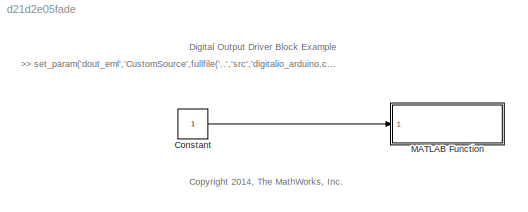
MODEL slx_d21d2e05fade
KIND model
BLOCK [Constant] Constant
  SampleTime = 0.2
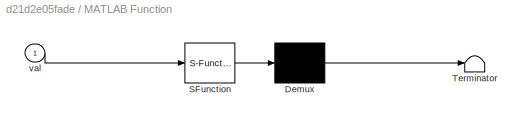
BLOCK [SubSystem] MATLAB Function
  ErrorFcn = Stateflow.Translate.translate
  PermitHierarchicalResolution = ExplicitOnly
  Ports = [1]
  RequestExecContextInheritance = off
  SFBlockType = MATLAB Function
  TreatAsAtomicUnit = on
BLOCK [Demux] MATLAB Function/ Demux 
  Outputs = 1
  Ports = [1, 1]
BLOCK [S-Function] MATLAB Function/ SFunction 
  EnableBusSupport = on
  FunctionName = sf_sfun
  Parameters = pin
  PortCounts = [1 1]
  Ports = [1, 1]
  Tag = Stateflow S-Function dout_eml 2
BLOCK [Terminator] MATLAB Function/ Terminator 
BLOCK [Inport] MATLAB Function/val
  IconDisplay = Port number
ANNOTATION (root): >> set_param('dout_eml','CustomSource',fullfile('..','src','digitalio_arduino.cpp'))
ANNOTATION (root): <copyright redacted>
ANNOTATION (root): Digital Output Driver Block Example
LINE Constant:1 -> MATLAB Function:1
